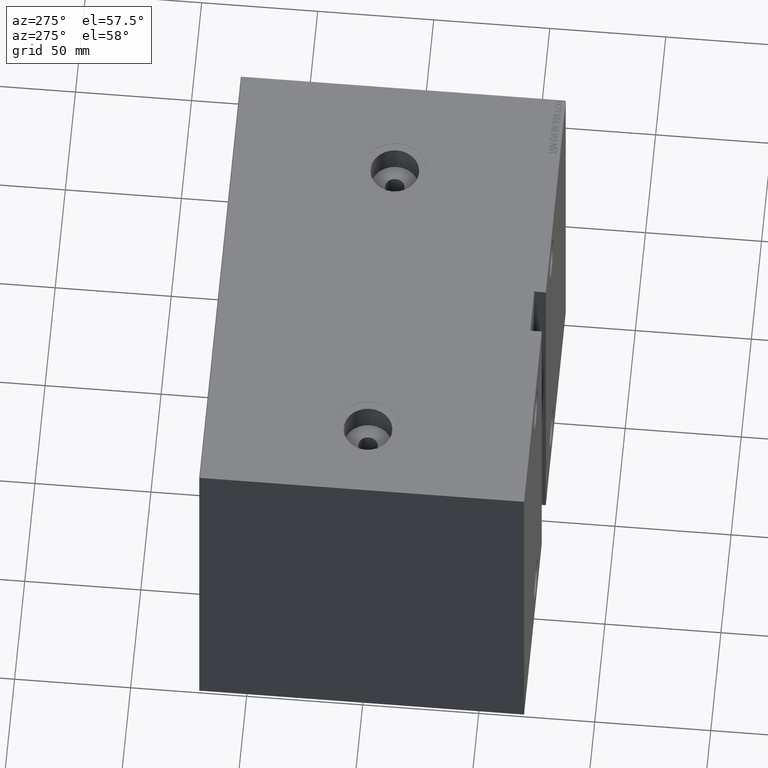
[diagram: clean part render]
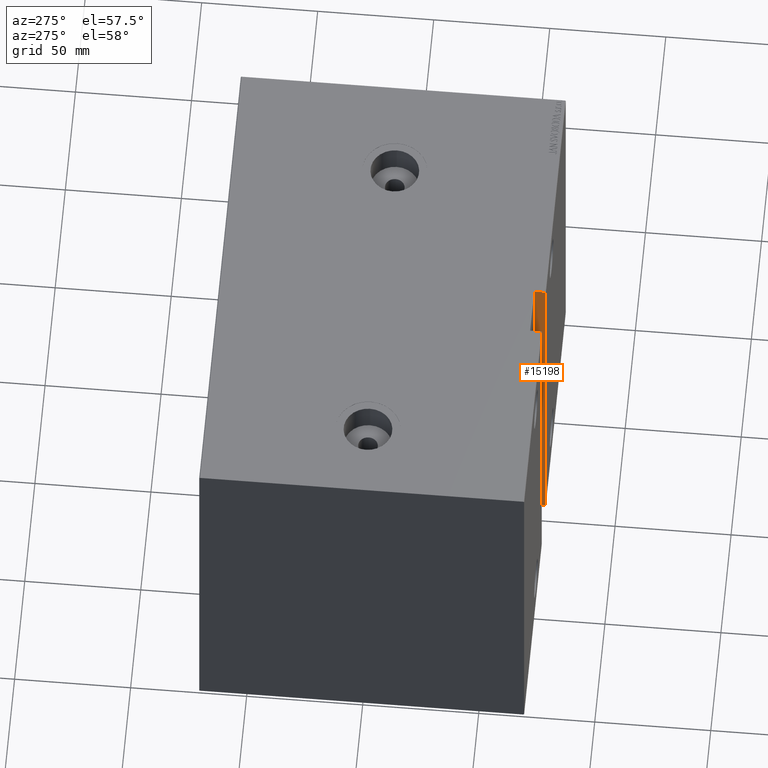
[diagram: same view with one face highlighted and labeled with its STEP entity id]
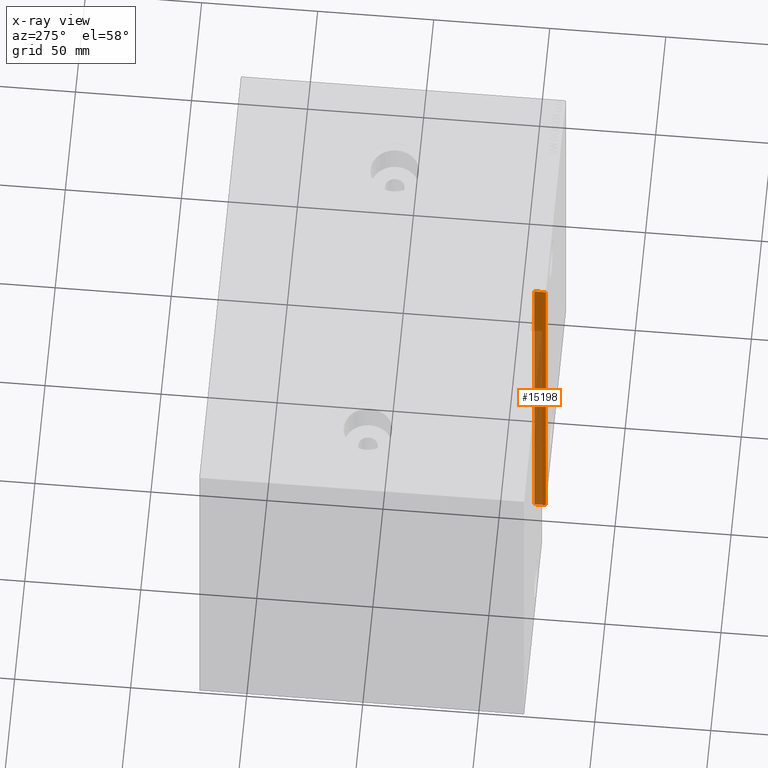
[diagram: x-ray of the same camera — body ghosted, the highlighted face saturated]
A machine part, auxiliary view. The second image highlights one B-rep face of the part: STEP entity #15198.
The next image is the same camera in x-ray: the body ghosted, the highlighted face saturated — about 53% of this face is hidden behind the body in this view.
In plain terms, the highlighted planar face has unit normal (1, 0, -0).
Its self-contained STEP definition (entity closure, byte-faithful):
#761 = DIRECTION ( 'NONE',  ( -1.000000000000000000, -0.000000000000000000, 0.000000000000000000 ) ) ;
#1928 = ORIENTED_EDGE ( 'NONE', *, *, #4241, .F. ) ;
#2199 = ORIENTED_EDGE ( 'NONE', *, *, #8978, .F. ) ;
#3286 = CARTESIAN_POINT ( 'NONE',  ( 98.00000000000000000, 69.69999999999997442, -85.00000000000001421 ) ) ;
#4241 = EDGE_CURVE ( 'NONE', #13364, #6686, #25653, .T. ) ;
#4630 = VERTEX_POINT ( 'NONE', #42625 ) ;
#4798 = DIRECTION ( 'NONE',  ( 0.000000000000000000, 0.000000000000000000, 1.000000000000000000 ) ) ;
#4801 = EDGE_CURVE ( 'NONE', #4630, #35878, #40810, .T. ) ;
#4922 = CARTESIAN_POINT ( 'NONE',  ( 98.00000000000000000, 70.00000000000001421, 84.70000000000000284 ) ) ;
#6246 = CARTESIAN_POINT ( 'NONE',  ( 98.00000000000000000, 65.00000000000004263, -85.00000000000001421 ) ) ;
#6686 = VERTEX_POINT ( 'NONE', #7096 ) ;
#6843 = EDGE_LOOP ( 'NONE', ( #26329, #37613, #1928, #2199, #33553, #27658 ) ) ;
#7096 = CARTESIAN_POINT ( 'NONE',  ( 98.00000000000000000, 69.70000000000004547, 85.00000000000001421 ) ) ;
#7360 = LINE ( 'NONE', #16645, #26656 ) ;
#7725 = FACE_OUTER_BOUND ( 'NONE', #6843, .T. ) ;
#7863 = VERTEX_POINT ( 'NONE', #22552 ) ;
#8978 = EDGE_CURVE ( 'NONE', #7863, #13364, #44280, .T. ) ;
#9722 = DIRECTION ( 'NONE',  ( -0.000000000000000000, -0.7071067811864985009, 0.7071067811865965336 ) ) ;
#10076 = CARTESIAN_POINT ( 'NONE',  ( 98.00000000000000000, 70.00000000000004263, -85.00000000000001421 ) ) ;
#12303 = LINE ( 'NONE', #6246, #36954 ) ;
#13119 = DIRECTION ( 'NONE',  ( 0.000000000000000000, -1.632680918566406300E-16, 1.000000000000000000 ) ) ;
#13364 = VERTEX_POINT ( 'NONE', #25134 ) ;
#13835 = VECTOR ( 'NONE', #13119, 1000.000000000000000 ) ;
#15198 = ADVANCED_FACE ( 'NONE', ( #7725 ), #18038, .F. ) ;
#16645 = CARTESIAN_POINT ( 'NONE',  ( 98.00000000000000000, 70.00000000000002842, -84.70000000000001705 ) ) ;
#18038 = PLANE ( 'NONE',  #27396 ) ;
#19939 = DIRECTION ( 'NONE',  ( -0.000000000000000000, 1.000000000000000000, 1.261617073437677752E-16 ) ) ;
#20668 = EDGE_CURVE ( 'NONE', #35461, #4630, #7360, .T. ) ;
#21057 = DIRECTION ( 'NONE',  ( -0.000000000000000000, 0.7071067811866293962, 0.7071067811864657493 ) ) ;
#22552 = CARTESIAN_POINT ( 'NONE',  ( 98.00000000000000000, 65.00000000000004263, -85.00000000000001421 ) ) ;
#23783 = DIRECTION ( 'NONE',  ( 0.000000000000000000, -1.632680918566406300E-16, 1.000000000000000000 ) ) ;
#25134 = CARTESIAN_POINT ( 'NONE',  ( 98.00000000000000000, 65.00000000000001421, 85.00000000000001421 ) ) ;
#25653 = LINE ( 'NONE', #29910, #36029 ) ;
#26329 = ORIENTED_EDGE ( 'NONE', *, *, #4801, .T. ) ;
#26656 = VECTOR ( 'NONE', #21057, 1000.000000000000000 ) ;
#27396 = AXIS2_PLACEMENT_3D ( 'NONE', #31512, #761, #4798 ) ;
#27658 = ORIENTED_EDGE ( 'NONE', *, *, #20668, .T. ) ;
#29910 = CARTESIAN_POINT ( 'NONE',  ( 98.00000000000000000, 65.00000000000001421, 85.00000000000001421 ) ) ;
#30266 = VECTOR ( 'NONE', #23783, 1000.000000000000000 ) ;
#31512 = CARTESIAN_POINT ( 'NONE',  ( 98.00000000000000000, 65.00000000000004263, -85.00000000000001421 ) ) ;
#33531 = CARTESIAN_POINT ( 'NONE',  ( 98.00000000000000000, 65.00000000000004263, -85.00000000000001421 ) ) ;
#33553 = ORIENTED_EDGE ( 'NONE', *, *, #36814, .T. ) ;
#35461 = VERTEX_POINT ( 'NONE', #3286 ) ;
#35878 = VERTEX_POINT ( 'NONE', #4922 ) ;
#36029 = VECTOR ( 'NONE', #39757, 1000.000000000000000 ) ;
#36814 = EDGE_CURVE ( 'NONE', #7863, #35461, #12303, .T. ) ;
#36954 = VECTOR ( 'NONE', #19939, 1000.000000000000000 ) ;
#37071 = CARTESIAN_POINT ( 'NONE',  ( 98.00000000000000000, 69.70000000000004547, 85.00000000000001421 ) ) ;
#37613 = ORIENTED_EDGE ( 'NONE', *, *, #42434, .T. ) ;
#39757 = DIRECTION ( 'NONE',  ( -0.000000000000000000, 1.000000000000000000, 1.261617073437677752E-16 ) ) ;
#39775 = LINE ( 'NONE', #37071, #39899 ) ;
#39899 = VECTOR ( 'NONE', #9722, 1000.000000000000114 ) ;
#40810 = LINE ( 'NONE', #10076, #30266 ) ;
#42434 = EDGE_CURVE ( 'NONE', #35878, #6686, #39775, .T. ) ;
#42625 = CARTESIAN_POINT ( 'NONE',  ( 98.00000000000000000, 70.00000000000004263, -84.70000000000001705 ) ) ;
#44280 = LINE ( 'NONE', #33531, #13835 ) ;